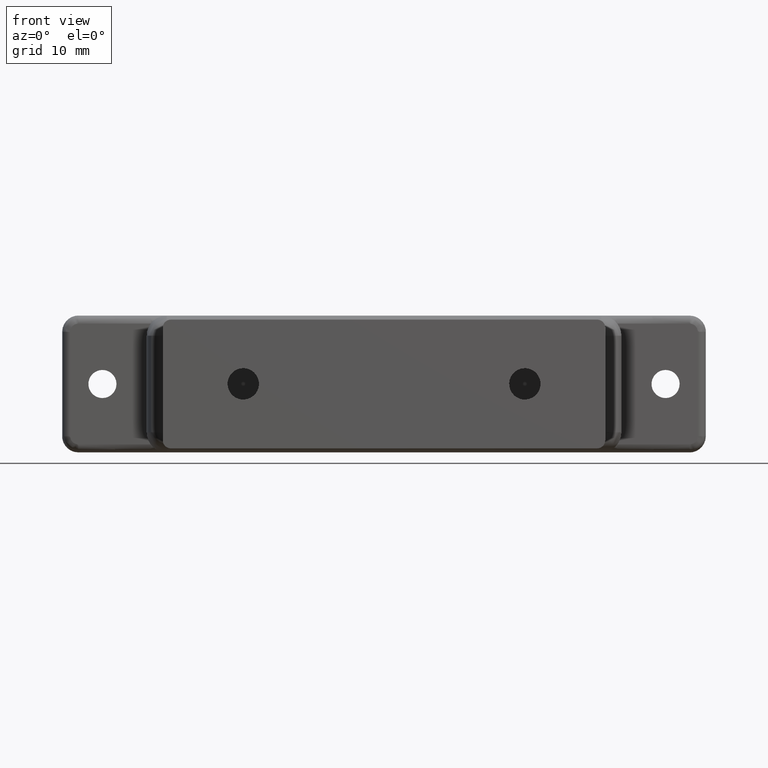
[diagram: clean part render]
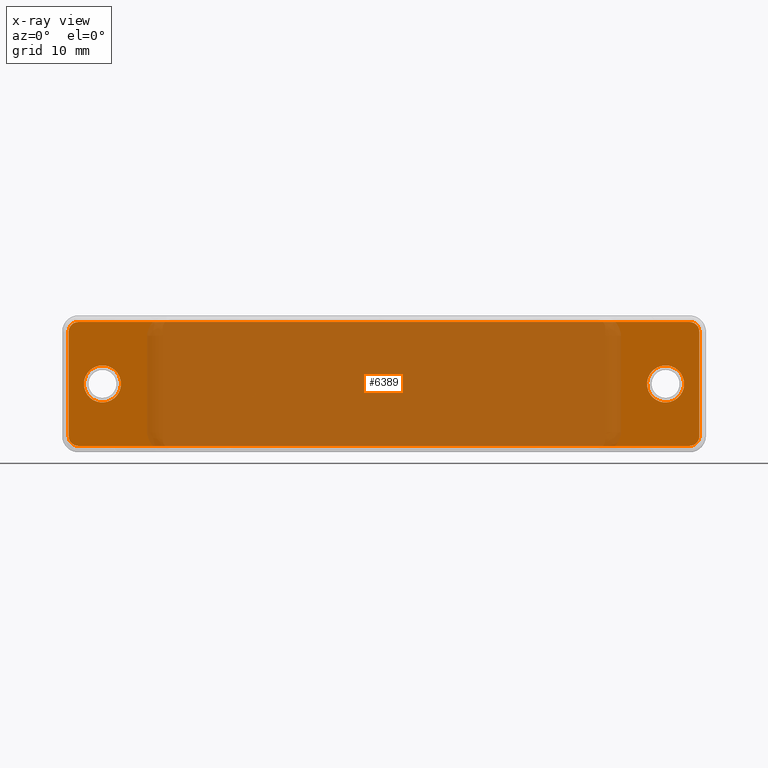
[diagram: x-ray — body ghosted, one internal face saturated and labeled with its STEP entity id]
A machine part, front view, then the same camera in x-ray: the body is ghosted and one INTERNAL B-rep face — a face not visible from any outside direction — is saturated and labeled: STEP entity #6389.
In plain terms, the highlighted face is a freeform B-spline surface patch.
Its self-contained STEP definition (entity closure, byte-faithful):
#5698=CARTESIAN_POINT('',(-32.707093132443362,-1.199999999999980,-0.180455920549552));
#5699=VERTEX_POINT('',#5698);
#5705=CARTESIAN_POINT('',(-35.000003000000000,-1.199999999999980,2.300000000000000));
#5706=VERTEX_POINT('',#5705);
#5707=CARTESIAN_POINT('',(-32.707093132443362,-1.199999999999980,-0.180455920549552));
#5708=CARTESIAN_POINT('',(-32.700002999999995,-1.199999999999980,-0.090367246494891));
#5709=CARTESIAN_POINT('',(-32.700003000000002,-1.199999999999980,0.0));
#5710=CARTESIAN_POINT('',(-32.700003000000009,-1.199999999999980,2.300000000000000));
#5711=CARTESIAN_POINT('',(-35.000003000000000,-1.199999999999980,2.300000000000000));
#5719=(BOUNDED_CURVE()B_SPLINE_CURVE(2,(#5707,#5708,#5709,#5710,#5711),.UNSPECIFIED.,.F.,.U.)B_SPLINE_CURVE_WITH_KNOTS((3,2,3),(0.736331300576619,0.750000000000000,1.0),.UNSPECIFIED.)CURVE()GEOMETRIC_REPRESENTATION_ITEM()RATIONAL_B_SPLINE_CURVE((0.969723356054639,0.983986122515569,1.0,0.707106781186547,1.0))REPRESENTATION_ITEM(''));
#5720=EDGE_CURVE('',#5699,#5706,#5719,.T.);
#5722=CARTESIAN_POINT('',(-37.292912867556637,-1.199999999999980,0.180455920549552));
#5723=VERTEX_POINT('',#5722);
#5724=CARTESIAN_POINT('',(-35.000003000000000,-1.199999999999980,2.300000000000000));
#5725=CARTESIAN_POINT('',(-37.126101130115345,-1.199999999999980,2.300000000000000));
#5726=CARTESIAN_POINT('',(-37.292912867556637,-1.199999999999980,0.180455920549552));
#5734=(BOUNDED_CURVE()B_SPLINE_CURVE(2,(#5724,#5725,#5726),.UNSPECIFIED.,.F.,.U.)B_SPLINE_CURVE_WITH_KNOTS((3,3),(0.0,0.236331300576619),.UNSPECIFIED.)CURVE()GEOMETRIC_REPRESENTATION_ITEM()RATIONAL_B_SPLINE_CURVE((1.0,0.723120658670978,0.969723356054639))REPRESENTATION_ITEM(''));
#5735=EDGE_CURVE('',#5706,#5723,#5734,.T.);
#5781=CARTESIAN_POINT('',(-35.000003000000000,-1.199999999999980,-2.300000000000000));
#5782=VERTEX_POINT('',#5781);
#5783=CARTESIAN_POINT('',(-37.292912867556637,-1.199999999999980,0.180455920549552));
#5784=CARTESIAN_POINT('',(-37.300002999999990,-1.199999999999980,0.090367246494891));
#5785=CARTESIAN_POINT('',(-37.300002999999997,-1.199999999999980,0.0));
#5786=CARTESIAN_POINT('',(-37.300002999999997,-1.199999999999980,-2.300000000000000));
#5787=CARTESIAN_POINT('',(-35.000003000000000,-1.199999999999980,-2.300000000000000));
#5795=(BOUNDED_CURVE()B_SPLINE_CURVE(2,(#5783,#5784,#5785,#5786,#5787),.UNSPECIFIED.,.F.,.U.)B_SPLINE_CURVE_WITH_KNOTS((3,2,3),(0.236331300576619,0.250000000000000,0.500000000000000),.UNSPECIFIED.)CURVE()GEOMETRIC_REPRESENTATION_ITEM()RATIONAL_B_SPLINE_CURVE((0.969723356054639,0.983986122515569,1.0,0.707106781186547,1.0))REPRESENTATION_ITEM(''));
#5796=EDGE_CURVE('',#5723,#5782,#5795,.T.);
#5798=CARTESIAN_POINT('',(-35.000003000000000,-1.199999999999980,-2.300000000000000));
#5799=CARTESIAN_POINT('',(-32.873904869884676,-1.199999999999980,-2.300000000000000));
#5800=CARTESIAN_POINT('',(-32.707093132443354,-1.199999999999980,-0.180455920549552));
#5808=(BOUNDED_CURVE()B_SPLINE_CURVE(2,(#5798,#5799,#5800),.UNSPECIFIED.,.F.,.U.)B_SPLINE_CURVE_WITH_KNOTS((3,3),(0.500000000000000,0.736331300576618),.UNSPECIFIED.)CURVE()GEOMETRIC_REPRESENTATION_ITEM()RATIONAL_B_SPLINE_CURVE((1.0,0.723120658670980,0.969723356054636))REPRESENTATION_ITEM(''));
#5809=EDGE_CURVE('',#5782,#5699,#5808,.T.);
#5880=CARTESIAN_POINT('',(37.292909867556652,-1.199999999999980,-0.180455920549551));
#5881=VERTEX_POINT('',#5880);
#5887=CARTESIAN_POINT('',(35.0,-1.199999999999980,2.300000000000000));
#5888=VERTEX_POINT('',#5887);
#5889=CARTESIAN_POINT('',(37.292909867556638,-1.199999999999980,-0.180455920549551));
#5890=CARTESIAN_POINT('',(37.299999999999997,-1.199999999999980,-0.090367246494890));
#5891=CARTESIAN_POINT('',(37.299999999999997,-1.199999999999980,0.0));
#5892=CARTESIAN_POINT('',(37.299999999999997,-1.199999999999980,2.300000000000000));
#5893=CARTESIAN_POINT('',(35.0,-1.199999999999980,2.300000000000000));
#5901=(BOUNDED_CURVE()B_SPLINE_CURVE(2,(#5889,#5890,#5891,#5892,#5893),.UNSPECIFIED.,.F.,.U.)B_SPLINE_CURVE_WITH_KNOTS((3,2,3),(0.736331300576619,0.750000000000000,1.0),.UNSPECIFIED.)CURVE()GEOMETRIC_REPRESENTATION_ITEM()RATIONAL_B_SPLINE_CURVE((0.969723356054639,0.983986122515569,1.0,0.707106781186547,1.0))REPRESENTATION_ITEM(''));
#5902=EDGE_CURVE('',#5881,#5888,#5901,.T.);
#5904=CARTESIAN_POINT('',(32.707090132443362,-1.199999999999980,0.180455920549551));
#5905=VERTEX_POINT('',#5904);
#5906=CARTESIAN_POINT('',(35.0,-1.199999999999980,2.300000000000000));
#5907=CARTESIAN_POINT('',(32.873901869884662,-1.199999999999980,2.300000000000000));
#5908=CARTESIAN_POINT('',(32.707090132443362,-1.199999999999980,0.180455920549551));
#5916=(BOUNDED_CURVE()B_SPLINE_CURVE(2,(#5906,#5907,#5908),.UNSPECIFIED.,.F.,.U.)B_SPLINE_CURVE_WITH_KNOTS((3,3),(0.0,0.236331300576619),.UNSPECIFIED.)CURVE()GEOMETRIC_REPRESENTATION_ITEM()RATIONAL_B_SPLINE_CURVE((1.0,0.723120658670978,0.969723356054639))REPRESENTATION_ITEM(''));
#5917=EDGE_CURVE('',#5888,#5905,#5916,.T.);
#5963=CARTESIAN_POINT('',(35.0,-1.199999999999980,-2.300000000000000));
#5964=VERTEX_POINT('',#5963);
#5965=CARTESIAN_POINT('',(32.707090132443369,-1.199999999999980,0.180455920549551));
#5966=CARTESIAN_POINT('',(32.700000000000017,-1.199999999999980,0.090367246494890));
#5967=CARTESIAN_POINT('',(32.700000000000010,-1.199999999999980,0.0));
#5968=CARTESIAN_POINT('',(32.700000000000017,-1.199999999999980,-2.300000000000000));
#5969=CARTESIAN_POINT('',(35.0,-1.199999999999980,-2.300000000000000));
#5977=(BOUNDED_CURVE()B_SPLINE_CURVE(2,(#5965,#5966,#5967,#5968,#5969),.UNSPECIFIED.,.F.,.U.)B_SPLINE_CURVE_WITH_KNOTS((3,2,3),(0.236331300576619,0.250000000000000,0.500000000000000),.UNSPECIFIED.)CURVE()GEOMETRIC_REPRESENTATION_ITEM()RATIONAL_B_SPLINE_CURVE((0.969723356054639,0.983986122515569,1.0,0.707106781186547,1.0))REPRESENTATION_ITEM(''));
#5978=EDGE_CURVE('',#5905,#5964,#5977,.T.);
#5980=CARTESIAN_POINT('',(35.0,-1.199999999999980,-2.300000000000000));
#5981=CARTESIAN_POINT('',(37.126098130115352,-1.199999999999980,-2.300000000000000));
#5982=CARTESIAN_POINT('',(37.292909867556645,-1.199999999999980,-0.180455920549551));
#5990=(BOUNDED_CURVE()B_SPLINE_CURVE(2,(#5980,#5981,#5982),.UNSPECIFIED.,.F.,.U.)B_SPLINE_CURVE_WITH_KNOTS((3,3),(0.500000000000000,0.736331300576620),.UNSPECIFIED.)CURVE()GEOMETRIC_REPRESENTATION_ITEM()RATIONAL_B_SPLINE_CURVE((1.0,0.723120658670977,0.969723356054641))REPRESENTATION_ITEM(''));
#5991=EDGE_CURVE('',#5964,#5881,#5990,.T.);
#6041=CARTESIAN_POINT('',(38.002683279900403,-1.199999999999980,7.699997000000000));
#6042=VERTEX_POINT('',#6041);
#6048=CARTESIAN_POINT('',(39.200012000000001,-1.199999999999980,6.500000000000000));
#6049=VERTEX_POINT('',#6048);
#6050=CARTESIAN_POINT('',(39.200011999999987,-1.199999999999980,6.500000000000000));
#6051=CARTESIAN_POINT('',(39.200011999999980,-1.199999999999980,7.697331686656012));
#6052=CARTESIAN_POINT('',(38.002683279900403,-1.199999999999980,7.699997000000050));
#6060=(BOUNDED_CURVE()B_SPLINE_CURVE(2,(#6050,#6051,#6052),.UNSPECIFIED.,.F.,.U.)CURVE()GEOMETRIC_REPRESENTATION_ITEM()QUASI_UNIFORM_CURVE()RATIONAL_B_SPLINE_CURVE((1.0,0.707893369185311,1.0))REPRESENTATION_ITEM(''));
#6061=EDGE_CURVE('',#6049,#6042,#6060,.T.);
#6084=CARTESIAN_POINT('',(39.200012000000001,-1.199999999999980,-6.500000000000000));
#6085=VERTEX_POINT('',#6084);
#6086=CARTESIAN_POINT('',(39.200012000000001,-1.199999999999980,-6.500000000000000));
#6087=CARTESIAN_POINT('',(39.200012000000001,-1.199999999999980,6.500000000000000));
#6088=QUASI_UNIFORM_CURVE('',1,(#6086,#6087),.UNSPECIFIED.,.F.,.U.);
#6089=EDGE_CURVE('',#6085,#6049,#6088,.T.);
#6129=CARTESIAN_POINT('',(38.002683279897198,-1.199999999999980,-7.699997000000000));
#6130=VERTEX_POINT('',#6129);
#6131=CARTESIAN_POINT('',(38.002683279897198,-1.199999999999980,-7.699996999999943));
#6132=CARTESIAN_POINT('',(39.200011999999965,-1.199999999999980,-7.697331686659187));
#6133=CARTESIAN_POINT('',(39.200011999999973,-1.199999999999980,-6.500000000000000));
#6141=(BOUNDED_CURVE()B_SPLINE_CURVE(2,(#6131,#6132,#6133),.UNSPECIFIED.,.F.,.U.)CURVE()GEOMETRIC_REPRESENTATION_ITEM()QUASI_UNIFORM_CURVE()RATIONAL_B_SPLINE_CURVE((1.0,0.707893369184341,1.0))REPRESENTATION_ITEM(''));
#6142=EDGE_CURVE('',#6130,#6085,#6141,.T.);
#6165=CARTESIAN_POINT('',(-38.002683279897198,-1.199999999999980,-7.699997000000000));
#6166=VERTEX_POINT('',#6165);
#6167=CARTESIAN_POINT('',(-38.002683279897198,-1.199999999999980,-7.699997000000000));
#6168=CARTESIAN_POINT('',(38.002683279897198,-1.199999999999980,-7.699997000000000));
#6169=QUASI_UNIFORM_CURVE('',1,(#6167,#6168),.UNSPECIFIED.,.F.,.U.);
#6170=EDGE_CURVE('',#6166,#6130,#6169,.T.);
#6210=CARTESIAN_POINT('',(-39.199997000000053,-1.199999999999980,-6.500000000000000));
#6211=VERTEX_POINT('',#6210);
#6212=CARTESIAN_POINT('',(-39.199997000000053,-1.199999999999980,-6.500000000000000));
#6213=CARTESIAN_POINT('',(-39.199998500000021,-1.199999999999980,-7.697319713402088));
#6214=CARTESIAN_POINT('',(-38.002683279897198,-1.199999999999980,-7.699997000000000));
#6222=(BOUNDED_CURVE()B_SPLINE_CURVE(2,(#6212,#6213,#6214),.UNSPECIFIED.,.F.,.U.)CURVE()GEOMETRIC_REPRESENTATION_ITEM()QUASI_UNIFORM_CURVE()RATIONAL_B_SPLINE_CURVE((1.0,0.707896908660081,1.0))REPRESENTATION_ITEM(''));
#6223=EDGE_CURVE('',#6211,#6166,#6222,.T.);
#6246=CARTESIAN_POINT('',(-39.199997000000053,-1.199999999999980,6.502683279884510));
#6247=VERTEX_POINT('',#6246);
#6248=CARTESIAN_POINT('',(-39.199997000000053,-1.199999999999980,6.502683279884510));
#6249=CARTESIAN_POINT('',(-39.199997000000053,-1.199999999999980,-6.500000000000000));
#6250=QUASI_UNIFORM_CURVE('',1,(#6248,#6249),.UNSPECIFIED.,.F.,.U.);
#6251=EDGE_CURVE('',#6247,#6211,#6250,.T.);
#6291=CARTESIAN_POINT('',(-38.002683279900403,-1.199999999999980,7.699997000000000));
#6292=VERTEX_POINT('',#6291);
#6293=CARTESIAN_POINT('',(-38.002683279900403,-1.199999999999980,7.699996999999990));
#6294=CARTESIAN_POINT('',(-39.197325693357413,-1.199999999999980,7.697325693341563));
#6295=CARTESIAN_POINT('',(-39.199997000000032,-1.199999999999980,6.502683279884510));
#6303=(BOUNDED_CURVE()B_SPLINE_CURVE(2,(#6293,#6294,#6295),.UNSPECIFIED.,.F.,.U.)CURVE()GEOMETRIC_REPRESENTATION_ITEM()QUASI_UNIFORM_CURVE()RATIONAL_B_SPLINE_CURVE((1.0,0.708686151259412,1.0))REPRESENTATION_ITEM(''));
#6304=EDGE_CURVE('',#6292,#6247,#6303,.T.);
#6325=CARTESIAN_POINT('',(38.002683279900403,-1.199999999999980,7.699997000000000));
#6326=CARTESIAN_POINT('',(-38.002683279900403,-1.199999999999980,7.699997000000000));
#6327=QUASI_UNIFORM_CURVE('',1,(#6325,#6326),.UNSPECIFIED.,.F.,.U.);
#6328=EDGE_CURVE('',#6042,#6292,#6327,.T.);
#6362=CARTESIAN_POINT('',(-43.116077297595623,-1.200000000000000,8.469226670451823));
#6363=CARTESIAN_POINT('',(43.116094400447693,-1.200000000000000,8.469226670451823));
#6364=CARTESIAN_POINT('',(-43.116077297595623,-1.200000000000000,-8.469227083511852));
#6365=CARTESIAN_POINT('',(43.116094400447693,-1.200000000000000,-8.469227083511852));
#6366=B_SPLINE_SURFACE_WITH_KNOTS('',1,1,((#6362,#6364),(#6363,#6365)),.UNSPECIFIED.,.F.,.F.,.U.,(2,2),(2,2),(0.0,86.232171698043302),(0.0,16.938453753963682),.UNSPECIFIED.);
#6367=ORIENTED_EDGE('',*,*,#6328,.T.);
#6368=ORIENTED_EDGE('',*,*,#6304,.T.);
#6369=ORIENTED_EDGE('',*,*,#6251,.T.);
#6370=ORIENTED_EDGE('',*,*,#6223,.T.);
#6371=ORIENTED_EDGE('',*,*,#6170,.T.);
#6372=ORIENTED_EDGE('',*,*,#6142,.T.);
#6373=ORIENTED_EDGE('',*,*,#6089,.T.);
#6374=ORIENTED_EDGE('',*,*,#6061,.T.);
#6375=EDGE_LOOP('',(#6367,#6368,#6369,#6370,#6371,#6372,#6373,#6374));
#6376=FACE_OUTER_BOUND('',#6375,.T.);
#6377=ORIENTED_EDGE('',*,*,#5991,.F.);
#6378=ORIENTED_EDGE('',*,*,#5978,.F.);
#6379=ORIENTED_EDGE('',*,*,#5917,.F.);
#6380=ORIENTED_EDGE('',*,*,#5902,.F.);
#6381=EDGE_LOOP('',(#6377,#6378,#6379,#6380));
#6382=FACE_BOUND('',#6381,.T.);
#6383=ORIENTED_EDGE('',*,*,#5809,.F.);
#6384=ORIENTED_EDGE('',*,*,#5796,.F.);
#6385=ORIENTED_EDGE('',*,*,#5735,.F.);
#6386=ORIENTED_EDGE('',*,*,#5720,.F.);
#6387=EDGE_LOOP('',(#6383,#6384,#6385,#6386));
#6388=FACE_BOUND('',#6387,.T.);
#6389=ADVANCED_FACE('',(#6376,#6382,#6388),#6366,.F.);